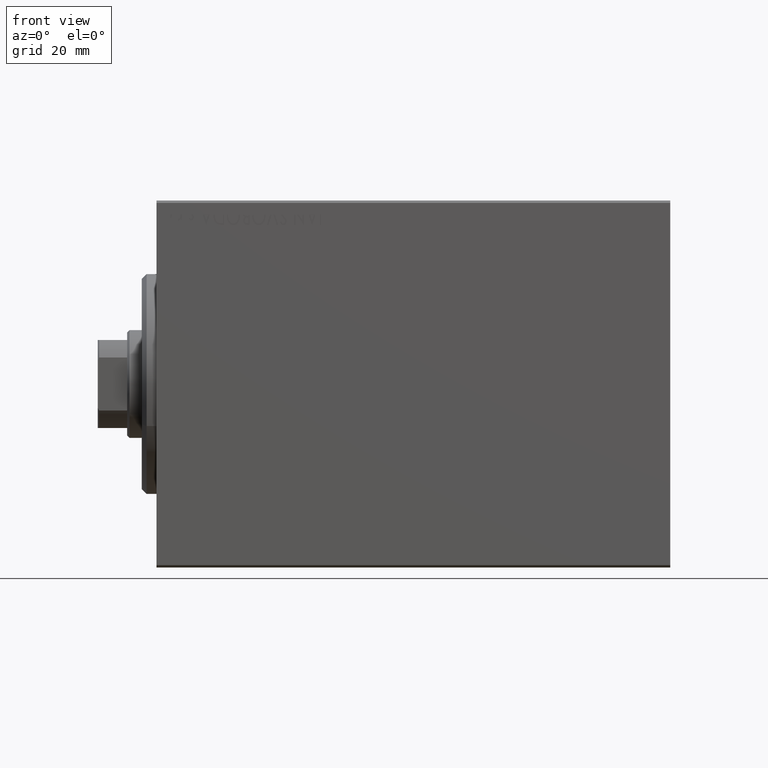
[diagram: clean part render]
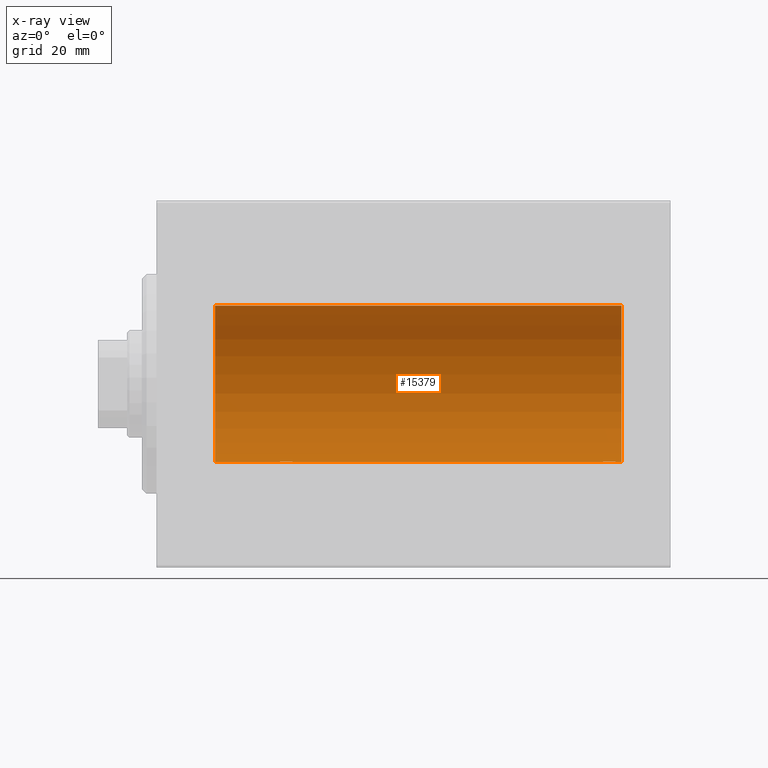
[diagram: x-ray — body ghosted, one internal face saturated and labeled with its STEP entity id]
A machine part, front view, then the same camera in x-ray: the body is ghosted and one INTERNAL B-rep face — a face not visible from any outside direction — is saturated and labeled: STEP entity #15379.
In plain terms, the highlighted cylindrical surface (partial cylindrical patch) has radius 16 mm, axis along (-1, -0, -0).
Its self-contained STEP definition (entity closure, byte-faithful):
#371 = CIRCLE ( 'NONE', #14552, 16.00000000000000000 ) ;
#547 = DIRECTION ( 'NONE',  ( -1.000000000000000000, -0.000000000000000000, -0.000000000000000000 ) ) ;
#592 = CARTESIAN_POINT ( 'NONE',  ( 90.51299475991585552, 0.2623312429553206759, -15.99836091803360105 ) ) ;
#742 = CARTESIAN_POINT ( 'NONE',  ( 27.50311247035039486, 1.735145127817748989, -15.90580292899658765 ) ) ;
#807 = CARTESIAN_POINT ( 'NONE',  ( 91.97468243540599531, 1.947280337074155820, -15.88137861827787134 ) ) ;
#961 = CARTESIAN_POINT ( 'NONE',  ( 25.27043888260214999, 1.598790766515153061, -15.92099550861380486 ) ) ;
#2027 = EDGE_CURVE ( 'NONE', #20726, #27858, #13486, .T. ) ;
#2337 = EDGE_CURVE ( 'NONE', #6954, #6328, #42351, .T. ) ;
#2793 = ORIENTED_EDGE ( 'NONE', *, *, #5404, .F. ) ;
#3000 = CARTESIAN_POINT ( 'NONE',  ( 24.50000000000000000, -2.103177090749212087E-15, -16.00000000000000000 ) ) ;
#3919 = CARTESIAN_POINT ( 'NONE',  ( 95.00000000000000000, 1.959434878635765131E-15, -16.00000000000000000 ) ) ;
#4082 = CARTESIAN_POINT ( 'NONE',  ( 27.14386968033013758, 1.898058445420889750, -15.88709929148890510 ) ) ;
#4147 = CARTESIAN_POINT ( 'NONE',  ( 91.27043888260214999, 1.598790766515138406, -15.92099550861380841 ) ) ;
#4209 = ORIENTED_EDGE ( 'NONE', *, *, #17843, .T. ) ;
#4220 = EDGE_CURVE ( 'NONE', #24351, #28126, #371, .T. ) ;
#4432 = ORIENTED_EDGE ( 'NONE', *, *, #4220, .F. ) ;
#4944 = CARTESIAN_POINT ( 'NONE',  ( 24.76431901501739219, 1.002241074716281766, -15.96895041604536658 ) ) ;
#5014 = CARTESIAN_POINT ( 'NONE',  ( 93.14386968033014114, 1.898058445420880869, -15.88709929148890687 ) ) ;
#5237 = CARTESIAN_POINT ( 'NONE',  ( 93.82075824828930877, 1.507649250492129500, -15.92908549642227101 ) ) ;
#5404 = EDGE_CURVE ( 'NONE', #28126, #28952, #6817, .T. ) ;
#5463 = EDGE_CURVE ( 'NONE', #14034, #6328, #19570, .T. ) ;
#6060 = ORIENTED_EDGE ( 'NONE', *, *, #16202, .T. ) ;
#6082 = AXIS2_PLACEMENT_3D ( 'NONE', #24578, #41914, #31474 ) ;
#6328 = VERTEX_POINT ( 'NONE', #29905 ) ;
#6357 = DIRECTION ( 'NONE',  ( 0.000000000000000000, 0.000000000000000000, 1.000000000000000000 ) ) ;
#6817 = LINE ( 'NONE', #20382, #42296 ) ;
#6954 = VERTEX_POINT ( 'NONE', #3000 ) ;
#7492 = CARTESIAN_POINT ( 'NONE',  ( 90.90948495147900132, 1.219564485341759319, -15.95382484008322344 ) ) ;
#7758 = ORIENTED_EDGE ( 'NONE', *, *, #2337, .F. ) ;
#7857 = CARTESIAN_POINT ( 'NONE',  ( 28.39783726498896144, 0.6445079780200569930, -15.98747331501412816 ) ) ;
#8795 = CARTESIAN_POINT ( 'NONE',  ( 93.50311247035041617, 1.735145127817740551, -15.90580292899659121 ) ) ;
#9879 = EDGE_LOOP ( 'NONE', ( #2793, #4432, #6060, #29873, #7758, #21878, #20208, #4209 ) ) ;
#10974 = CARTESIAN_POINT ( 'NONE',  ( 27.01913097710113121, 1.935876924222081907, -15.88247600692093187 ) ) ;
#11620 = CARTESIAN_POINT ( 'NONE',  ( 24.60241129944407135, 0.6452446332038132004, -15.98744362947834929 ) ) ;
#12863 = CARTESIAN_POINT ( 'NONE',  ( 95.00000000000000000, 0.000000000000000000, 16.00000000000000000 ) ) ;
#12943 = CARTESIAN_POINT ( 'NONE',  ( 28.50000000000001066, 0.1305944228192323919, -16.00000000000000711 ) ) ;
#13486 = LINE ( 'NONE', #31049, #35800 ) ;
#14034 = VERTEX_POINT ( 'NONE', #19678 ) ;
#14304 = CARTESIAN_POINT ( 'NONE',  ( 28.00737160312429452, 1.321075116345886924, -15.94564302722882942 ) ) ;
#14368 = CARTESIAN_POINT ( 'NONE',  ( 92.23808537237746918, 1.999903730784148737, -15.87451999516786216 ) ) ;
#14527 = CARTESIAN_POINT ( 'NONE',  ( 26.62985308350499025, 2.000047931387146871, -15.87450182760079898 ) ) ;
#14552 = AXIS2_PLACEMENT_3D ( 'NONE', #19921, #26606, #6357 ) ;
#15034 = LINE ( 'NONE', #41958, #30397 ) ;
#15247 = CARTESIAN_POINT ( 'NONE',  ( 93.38617757057269841, 1.797743958659253183, -15.89876304682112362 ) ) ;
#15379 = ADVANCED_FACE ( 'NONE', ( #23483 ), #27263, .F. ) ;
#15917 = CARTESIAN_POINT ( 'NONE',  ( 93.01913097710109923, 1.935876924222071249, -15.88247600692093187 ) ) ;
#16202 = EDGE_CURVE ( 'NONE', #24351, #14034, #15034, .T. ) ;
#17036 = CARTESIAN_POINT ( 'NONE',  ( 95.00000000000000000, 0.000000000000000000, 0.000000000000000000 ) ) ;
#17720 = CARTESIAN_POINT ( 'NONE',  ( 91.49340818440418843, 1.747750603376292178, -15.90457341008071701 ) ) ;
#17843 = EDGE_CURVE ( 'NONE', #20726, #28952, #22474, .T. ) ;
#17960 = CARTESIAN_POINT ( 'NONE',  ( 90.50000000000000000, -8.578174582294765095E-15, -16.00000000000000000 ) ) ;
#18812 = CARTESIAN_POINT ( 'NONE',  ( 94.00737160312429808, 1.321075116345882261, -15.94564302722883298 ) ) ;
#19217 = DIRECTION ( 'NONE',  ( -1.000000000000000000, -0.000000000000000000, -0.000000000000000000 ) ) ;
#19570 = CIRCLE ( 'NONE', #6082, 16.00000000000000000 ) ;
#19678 = CARTESIAN_POINT ( 'NONE',  ( 11.99999999999999645, 0.000000000000000000, 16.00000000000000000 ) ) ;
#19921 = CARTESIAN_POINT ( 'NONE',  ( 95.00000000000000000, 0.000000000000000000, 0.000000000000000000 ) ) ;
#20208 = ORIENTED_EDGE ( 'NONE', *, *, #2027, .F. ) ;
#20382 = CARTESIAN_POINT ( 'NONE',  ( 95.00000000000000000, 1.959434878635765131E-15, -16.00000000000000000 ) ) ;
#20726 = VERTEX_POINT ( 'NONE', #17960 ) ;
#20991 = CARTESIAN_POINT ( 'NONE',  ( 26.23808537237744787, 1.999903730784160505, -15.87451999516786216 ) ) ;
#21878 = ORIENTED_EDGE ( 'NONE', *, *, #22337, .T. ) ;
#22337 = EDGE_CURVE ( 'NONE', #6954, #27858, #43461, .T. ) ;
#22474 = B_SPLINE_CURVE_WITH_KNOTS ( 'NONE', 3,
 ( #31077, #31936, #592, #28602, #42160, #24391, #37968, #7492, #34618, #4147, #17720, #807, #14368, #27950, #39271, #15917, #5014, #15247, #8795, #39501, #5237, #18812, #29712, #25929, #29265, #32377, #36158, #26153, #29044, #25481 ),
 .UNSPECIFIED., .F., .F.,
 ( 4, 2, 2, 2, 2, 2, 2, 2, 2, 2, 2, 2, 2, 2, 4 ),
 ( 2.346188884146258758E-18, 0.0003911894522871310989, 0.0007823789045742598125, 0.001173568356861387930, 0.001564757809148516155, 0.002347136713722742900, 0.003129515618296970728, 0.003520705070584084426, 0.003911894522871197689, 0.004303083975158311821, 0.004694273427445424217, 0.005085462879732538348, 0.005476652332019651612, 0.005867841784306764875, 0.006259031236593878139 ),
 .UNSPECIFIED. ) ;
#22961 = CARTESIAN_POINT ( 'NONE',  ( 28.48690924832126470, 0.2632563459770842496, -15.99834873924246814 ) ) ;
#23483 = FACE_OUTER_BOUND ( 'NONE', #9879, .T. ) ;
#24351 = VERTEX_POINT ( 'NONE', #12863 ) ;
#24391 = CARTESIAN_POINT ( 'NONE',  ( 90.70286585251780309, 0.8874076679346646346, -15.97583181162461052 ) ) ;
#24544 = CARTESIAN_POINT ( 'NONE',  ( 24.56388673317936622, 0.5181437283162044771, -15.99211983514074653 ) ) ;
#24578 = CARTESIAN_POINT ( 'NONE',  ( 11.99999999999999645, 0.000000000000000000, 0.000000000000000000 ) ) ;
#25411 = CARTESIAN_POINT ( 'NONE',  ( 24.50000000000000000, -2.103177090749212087E-15, -16.00000000000000000 ) ) ;
#25481 = CARTESIAN_POINT ( 'NONE',  ( 94.50000000000000000, 1.959434851248285101E-15, -16.00000000000000000 ) ) ;
#25512 = CARTESIAN_POINT ( 'NONE',  ( 28.49999999999999645, 1.959434851239213200E-15, -16.00000000000000000 ) ) ;
#25860 = CARTESIAN_POINT ( 'NONE',  ( 28.49999999999999645, 1.959434851239213200E-15, -16.00000000000000000 ) ) ;
#25929 = CARTESIAN_POINT ( 'NONE',  ( 94.23482670674955841, 1.003662148334367510, -15.96885838080210718 ) ) ;
#26153 = CARTESIAN_POINT ( 'NONE',  ( 94.48690924832123983, 0.2632563459770844716, -15.99834873924246459 ) ) ;
#26606 = DIRECTION ( 'NONE',  ( -1.000000000000000000, 0.000000000000000000, 0.000000000000000000 ) ) ;
#27060 = DIRECTION ( 'NONE',  ( -1.000000000000000000, -0.000000000000000000, -0.000000000000000000 ) ) ;
#27263 = CYLINDRICAL_SURFACE ( 'NONE', #41014, 16.00000000000000000 ) ;
#27858 = VERTEX_POINT ( 'NONE', #25512 ) ;
#27881 = CARTESIAN_POINT ( 'NONE',  ( 28.09001528100123579, 1.220169175415121154, -15.95377581882983975 ) ) ;
#27950 = CARTESIAN_POINT ( 'NONE',  ( 92.62985308350499736, 2.000047931387135325, -15.87450182760080253 ) ) ;
#28104 = CARTESIAN_POINT ( 'NONE',  ( 27.71967657442277044, 1.590393755196006786, -15.92092783521423627 ) ) ;
#28126 = VERTEX_POINT ( 'NONE', #3919 ) ;
#28320 = CARTESIAN_POINT ( 'NONE',  ( 24.90948495147900843, 1.219564485341768867, -15.95382484008323054 ) ) ;
#28602 = CARTESIAN_POINT ( 'NONE',  ( 90.56388673317935911, 0.5181437283161969276, -15.99211983514074653 ) ) ;
#28757 = CARTESIAN_POINT ( 'NONE',  ( 24.70286585251779954, 0.8874076679346754037, -15.97583181162461408 ) ) ;
#28952 = VERTEX_POINT ( 'NONE', #40423 ) ;
#29044 = CARTESIAN_POINT ( 'NONE',  ( 94.49999999999997158, 0.1305944228192316703, -16.00000000000000000 ) ) ;
#29265 = CARTESIAN_POINT ( 'NONE',  ( 94.29749928605039599, 0.8866640484200093431, -15.97587307151818159 ) ) ;
#29712 = CARTESIAN_POINT ( 'NONE',  ( 94.09001528100122869, 1.220169175415118712, -15.95377581882983442 ) ) ;
#29873 = ORIENTED_EDGE ( 'NONE', *, *, #5463, .T. ) ;
#29905 = CARTESIAN_POINT ( 'NONE',  ( 11.99999999999999645, 1.959434878635765131E-15, -16.00000000000000000 ) ) ;
#30138 = VECTOR ( 'NONE', #19217, 1000.000000000000000 ) ;
#30397 = VECTOR ( 'NONE', #42172, 1000.000000000000000 ) ;
#30608 = DIRECTION ( 'NONE',  ( 0.000000000000000000, 0.000000000000000000, 1.000000000000000000 ) ) ;
#31049 = CARTESIAN_POINT ( 'NONE',  ( 95.00000000000000000, 1.959434878635765131E-15, -16.00000000000000000 ) ) ;
#31077 = CARTESIAN_POINT ( 'NONE',  ( 90.50000000000000000, -8.578174582294765095E-15, -16.00000000000000000 ) ) ;
#31227 = CARTESIAN_POINT ( 'NONE',  ( 27.38617757057270197, 1.797743958659261398, -15.89876304682112718 ) ) ;
#31440 = CARTESIAN_POINT ( 'NONE',  ( 24.51299475991586974, 0.2623312429553280034, -15.99836091803359750 ) ) ;
#31474 = DIRECTION ( 'NONE',  ( 0.000000000000000000, 0.000000000000000000, 1.000000000000000000 ) ) ;
#31936 = CARTESIAN_POINT ( 'NONE',  ( 90.50000000000001421, 0.1322838750249152873, -16.00000000000000000 ) ) ;
#32377 = CARTESIAN_POINT ( 'NONE',  ( 94.39783726498899341, 0.6445079780200548836, -15.98747331501412106 ) ) ;
#34556 = CARTESIAN_POINT ( 'NONE',  ( 26.76251583007899271, 1.987008272775795614, -15.87616016863256263 ) ) ;
#34618 = CARTESIAN_POINT ( 'NONE',  ( 90.99389287531755599, 1.322357532253810364, -15.94553003295878391 ) ) ;
#35419 = CARTESIAN_POINT ( 'NONE',  ( 24.50000000000000000, 0.1322838750249236695, -16.00000000000000000 ) ) ;
#35800 = VECTOR ( 'NONE', #27060, 1000.000000000000000 ) ;
#36158 = CARTESIAN_POINT ( 'NONE',  ( 94.43569052926127938, 0.5198215460038742020, -15.99206840425678955 ) ) ;
#36567 = CARTESIAN_POINT ( 'NONE',  ( 95.00000000000000000, 1.959434878635765131E-15, -16.00000000000000000 ) ) ;
#37968 = CARTESIAN_POINT ( 'NONE',  ( 90.76431901501740640, 1.002241074716273106, -15.96895041604536125 ) ) ;
#38118 = CARTESIAN_POINT ( 'NONE',  ( 28.23482670674955486, 1.003662148334367954, -15.96885838080210718 ) ) ;
#38332 = CARTESIAN_POINT ( 'NONE',  ( 27.82075824828932653, 1.507649250492135717, -15.92908549642227101 ) ) ;
#38983 = CARTESIAN_POINT ( 'NONE',  ( 25.97468243540595623, 1.947280337074166257, -15.88137861827786779 ) ) ;
#39271 = CARTESIAN_POINT ( 'NONE',  ( 92.76251583007899626, 1.987008272775784290, -15.87616016863256974 ) ) ;
#39427 = CARTESIAN_POINT ( 'NONE',  ( 28.43569052926130425, 0.5198215460038758673, -15.99206840425679665 ) ) ;
#39501 = CARTESIAN_POINT ( 'NONE',  ( 93.71967657442274913, 1.590393755195998793, -15.92092783521423982 ) ) ;
#39954 = DIRECTION ( 'NONE',  ( -1.000000000000000000, -0.000000000000000000, -0.000000000000000000 ) ) ;
#40423 = CARTESIAN_POINT ( 'NONE',  ( 94.50000000000000000, 1.959434851248285101E-15, -16.00000000000000000 ) ) ;
#41014 = AXIS2_PLACEMENT_3D ( 'NONE', #17036, #547, #30608 ) ;
#41670 = CARTESIAN_POINT ( 'NONE',  ( 28.29749928605041021, 0.8866640484200126737, -15.97587307151818514 ) ) ;
#41879 = CARTESIAN_POINT ( 'NONE',  ( 25.49340818440418488, 1.747750603376301726, -15.90457341008072056 ) ) ;
#41914 = DIRECTION ( 'NONE',  ( -1.000000000000000000, 0.000000000000000000, 0.000000000000000000 ) ) ;
#41958 = CARTESIAN_POINT ( 'NONE',  ( 95.00000000000000000, 0.000000000000000000, 16.00000000000000000 ) ) ;
#42160 = CARTESIAN_POINT ( 'NONE',  ( 90.60241129944407135, 0.6452446332038024313, -15.98744362947834929 ) ) ;
#42172 = DIRECTION ( 'NONE',  ( -1.000000000000000000, -0.000000000000000000, -0.000000000000000000 ) ) ;
#42296 = VECTOR ( 'NONE', #39954, 1000.000000000000000 ) ;
#42313 = CARTESIAN_POINT ( 'NONE',  ( 24.99389287531753823, 1.322357532253824131, -15.94553003295876970 ) ) ;
#42351 = LINE ( 'NONE', #36567, #30138 ) ;
#43461 = B_SPLINE_CURVE_WITH_KNOTS ( 'NONE', 3,
 ( #25411, #35419, #31440, #24544, #11620, #28757, #4944, #28320, #42313, #961, #41879, #38983, #20991, #14527, #34556, #10974, #4082, #31227, #742, #28104, #38332, #14304, #27881, #38118, #41670, #7857, #39427, #22961, #12943, #25860 ),
 .UNSPECIFIED., .F., .F.,
 ( 4, 2, 2, 2, 2, 2, 2, 2, 2, 2, 2, 2, 2, 2, 4 ),
 ( 6.061354251518217081E-19, 0.0003911894522871152153, 0.0007823789045742298885, 0.001173568356861344345, 0.001564757809148459126, 0.002347136713722688690, 0.003129515618296918687, 0.003520705070584038889, 0.003911894522871159526, 0.004303083975158279728, 0.004694273427445399931, 0.005085462879732520133, 0.005476652332019640336, 0.005867841784306760539, 0.006259031236593880741 ),
 .UNSPECIFIED. ) ;